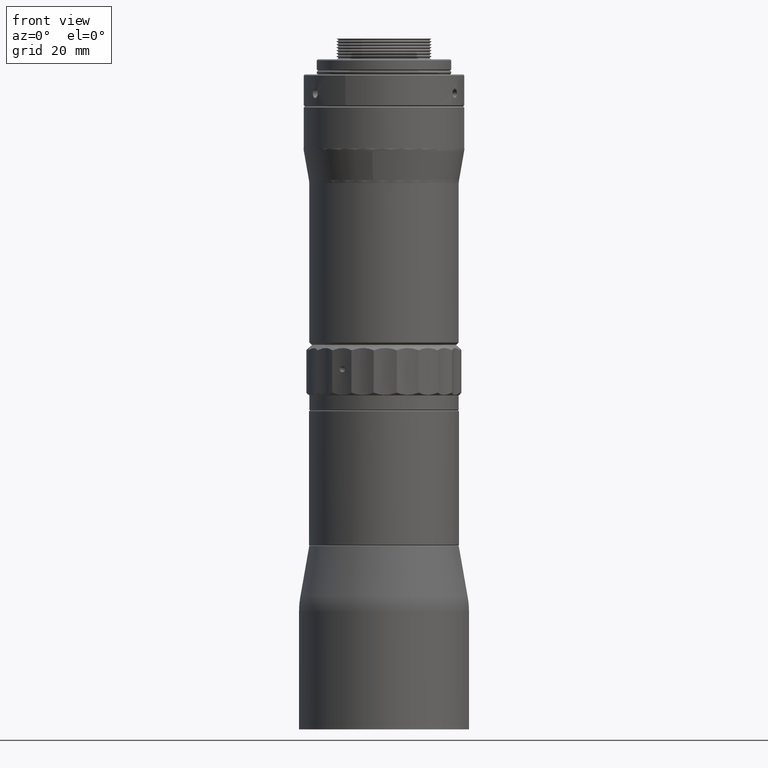
[diagram: clean part render]
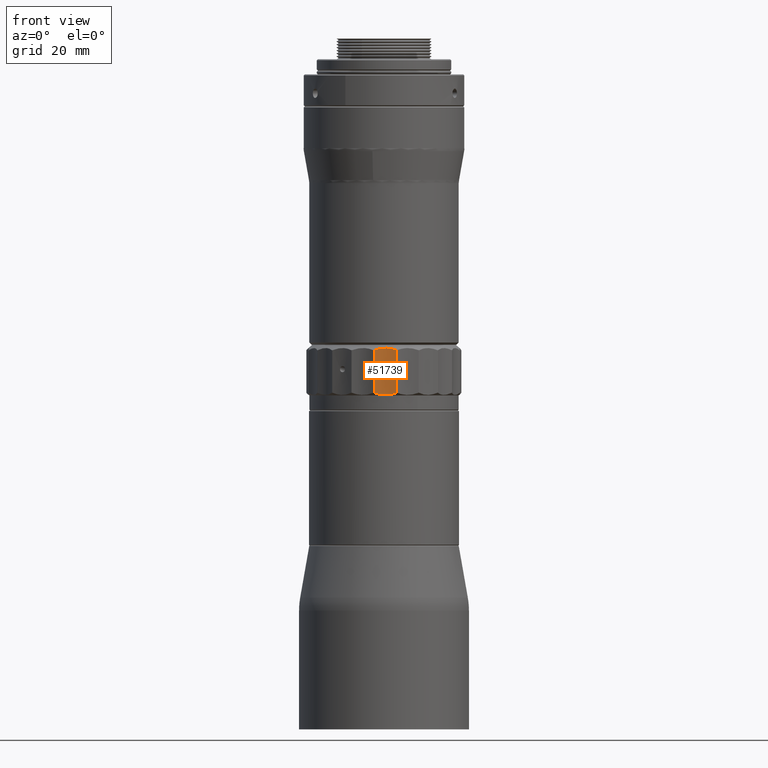
[diagram: same view with one face highlighted and labeled with its STEP entity id]
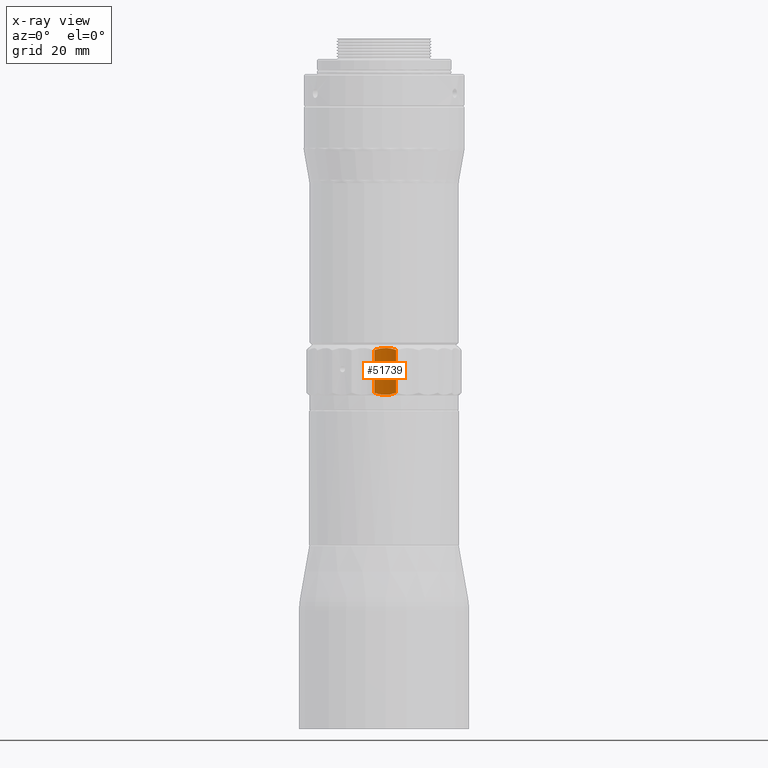
[diagram: x-ray of the same camera — body ghosted, the highlighted face saturated]
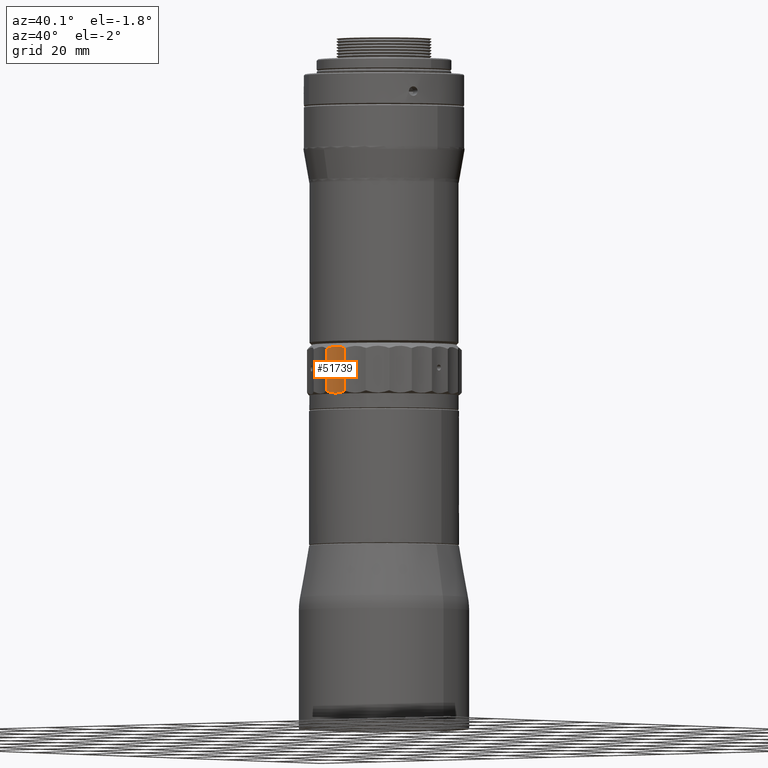
[diagram: same view with one face highlighted and labeled with its STEP entity id]
A machine part, front view. The second image highlights one B-rep face of the part: STEP entity #51739.
The next image is the same camera in x-ray: the body ghosted, the highlighted face saturated — about 0% of this face is hidden behind the body in this view.
A second angle (auxiliary view) of the same face is appended — the face is thin or edge-on in the first view.
In plain terms, the highlighted cylindrical surface (partial cylindrical patch) has radius 12.5 mm, axis along (0, 0, 1).
Its self-contained STEP definition (entity closure, byte-faithful):
#3083 = ORIENTED_EDGE ( 'NONE', *, *, #40556, .F. ) ;
#3836 = CARTESIAN_POINT ( 'NONE',  ( 0.8459623718879358800, -20.12559391238232100, 0.3418387945435792900 ) ) ;
#6682 = CARTESIAN_POINT ( 'NONE',  ( -2.544229410402068400, -20.51647741351325700, -3.800000000000016700 ) ) ;
#7390 = EDGE_CURVE ( 'NONE', #26258, #12067, #57110, .T. ) ;
#8555 = CARTESIAN_POINT ( 'NONE',  ( -0.6512763114536074300, -20.18117513613220400, 12.75984205458377300 ) ) ;
#8956 = CARTESIAN_POINT ( 'NONE',  ( -1.368551018708727100, -20.27210317649874900, 0.5168225069806166000 ) ) ;
#9651 = CARTESIAN_POINT ( 'NONE',  ( 1.343889316833777800, -20.14690924715752700, 0.3901579506920571600 ) ) ;
#12067 = VERTEX_POINT ( 'NONE', #13443 ) ;
#13443 = CARTESIAN_POINT ( 'NONE',  ( 3.247239920367536400, -20.41701206473479100, 12.27637069569749400 ) ) ;
#13649 = CARTESIAN_POINT ( 'NONE',  ( 1.332871917786445000, -20.13909893207689100, 12.77257291761309300 ) ) ;
#14602 = CARTESIAN_POINT ( 'NONE',  ( -2.544229410402072800, -20.51647741351325400, 12.27637069569750000 ) ) ;
#14746 = CARTESIAN_POINT ( 'NONE',  ( -1.610416886464301800, -20.31237892781359400, 0.5748037073963231400 ) ) ;
#16029 = ORIENTED_EDGE ( 'NONE', *, *, #31580, .F. ) ;
#16517 = CARTESIAN_POINT ( 'NONE',  ( 0.5603135079097479900, -32.62481393296793900, -3.800000000000011800 ) ) ;
#16619 = LINE ( 'NONE', #6682, #34946 ) ;
#17035 = CYLINDRICAL_SURFACE ( 'NONE', #23709, 12.50000000000000000 ) ;
#19699 = CARTESIAN_POINT ( 'NONE',  ( 0.8411220823890727100, -20.11810910025023700, 12.82043764096630800 ) ) ;
#19928 = CARTESIAN_POINT ( 'NONE',  ( -2.087913119501665400, -20.39947921915774400, 12.44863673020290500 ) ) ;
#21601 = B_SPLINE_CURVE_WITH_KNOTS ( 'NONE', 3,
 ( #70415, #26190, #36706, #42336, #9651, #3836, #36952, #54493, #31789, #8956, #14746, #48622, #53772, #37427 ),
 .UNSPECIFIED., .F., .F.,
 ( 4, 2, 2, 2, 2, 2, 4 ),
 ( 1.341084023004561700E-018, 0.001485982578273856800, 0.002228973867410783800, 0.002971965156547711400, 0.004457947734821565900, 0.005200939023958494800, 0.005943930313095422000 ),
 .UNSPECIFIED. ) ;
#23709 = AXIS2_PLACEMENT_3D ( 'NONE', #16517, #32584, #49879 ) ;
#25324 = CARTESIAN_POINT ( 'NONE',  ( 2.306969617802980400, -20.24509993647423700, 12.57519629787950600 ) ) ;
#26190 = CARTESIAN_POINT ( 'NONE',  ( 2.787175165840037700, -20.31575221847225500, 0.7013632750729377200 ) ) ;
#26258 = VERTEX_POINT ( 'NONE', #60273 ) ;
#30926 = CARTESIAN_POINT ( 'NONE',  ( 3.017000777578422400, -20.36633663269395500, 12.36258113395838800 ) ) ;
#31580 = EDGE_CURVE ( 'NONE', #71232, #26258, #16619, .T. ) ;
#31789 = CARTESIAN_POINT ( 'NONE',  ( -0.6405336066724723900, -20.17299110305478700, 0.3774270876627390800 ) ) ;
#32584 = DIRECTION ( 'NONE',  ( 6.423668115496230600E-017, 3.480795945985383800E-016, 1.000000000000000000 ) ) ;
#33117 = VERTEX_POINT ( 'NONE', #47778 ) ;
#34946 = VECTOR ( 'NONE', #45621, 1000.000000000000000 ) ;
#36706 = CARTESIAN_POINT ( 'NONE',  ( 2.315828168767330100, -20.23912842626256700, 0.5655838036294514900 ) ) ;
#36952 = CARTESIAN_POINT ( 'NONE',  ( 0.5948571770712847200, -20.12239670500849100, 0.3296565913239516400 ) ) ;
#37427 = CARTESIAN_POINT ( 'NONE',  ( -2.544229410402067500, -20.51647741351325700, 0.8736293095783394000 ) ) ;
#40556 = EDGE_CURVE ( 'NONE', #33117, #71232, #21601, .T. ) ;
#41927 = CARTESIAN_POINT ( 'NONE',  ( -1.619475267520976900, -20.30671513120458700, 12.58441620164638200 ) ) ;
#42184 = DIRECTION ( 'NONE',  ( -6.423668115496230600E-017, -3.480795945985383800E-016, -1.000000000000000000 ) ) ;
#42336 = CARTESIAN_POINT ( 'NONE',  ( 1.589317234651448600, -20.16486166061849200, 0.4259852948239277700 ) ) ;
#45621 = DIRECTION ( 'NONE',  ( 6.423668115496230600E-017, 3.480795945985383800E-016, 1.000000000000000000 ) ) ;
#45839 = EDGE_CURVE ( 'NONE', #12067, #33117, #60063, .T. ) ;
#47055 = CARTESIAN_POINT ( 'NONE',  ( -0.8959430240150190200, -20.20754465940779800, 12.72401471045190400 ) ) ;
#47778 = CARTESIAN_POINT ( 'NONE',  ( 3.247239920367538200, -20.41701206473479900, 0.8736293095783463900 ) ) ;
#48622 = CARTESIAN_POINT ( 'NONE',  ( -2.083578010523144300, -20.40524095188680700, 0.7100366038347054600 ) ) ;
#49879 = DIRECTION ( 'NONE',  ( -0.4492911343849184700, 0.8933854020315718000, -2.775557561562891400E-016 ) ) ;
#51739 = ADVANCED_FACE ( 'NONE', ( #53706 ), #17035, .F. ) ;
#53706 = FACE_OUTER_BOUND ( 'NONE', #69834, .T. ) ;
#53772 = CARTESIAN_POINT ( 'NONE',  ( -2.315866184087282100, -20.45792573418725300, 0.7874188713174441500 ) ) ;
#54493 = CARTESIAN_POINT ( 'NONE',  ( -0.1497945461686785400, -20.13512755661091100, 0.3295623643095250100 ) ) ;
#57110 = B_SPLINE_CURVE_WITH_KNOTS ( 'NONE', 3,
 ( #14602, #19928, #41927, #47055, #8555, #58045, #58758, #19699, #13649, #69519, #25324, #64384, #30926, #69999 ),
 .UNSPECIFIED., .F., .F.,
 ( 4, 2, 2, 2, 2, 2, 4 ),
 ( 6.732537572691845700E-018, 0.001485982578273861100, 0.002228973867410789000, 0.002971965156547717100, 0.004457947734821572800, 0.005200939023958501800, 0.005943930313095431600 ),
 .UNSPECIFIED. ) ;
#58045 = CARTESIAN_POINT ( 'NONE',  ( -0.1543749617289848800, -20.14277416424961200, 12.80816121073225500 ) ) ;
#58289 = CARTESIAN_POINT ( 'NONE',  ( 3.247239920367539900, -20.41701206473479900, -3.800000000000016700 ) ) ;
#58758 = CARTESIAN_POINT ( 'NONE',  ( 0.09647235555130430400, -20.13095619436553500, 12.82034341395188500 ) ) ;
#60063 = LINE ( 'NONE', #58289, #69689 ) ;
#60273 = CARTESIAN_POINT ( 'NONE',  ( -2.544229410402072800, -20.51647741351325400, 12.27637069569750000 ) ) ;
#61909 = ORIENTED_EDGE ( 'NONE', *, *, #45839, .F. ) ;
#64384 = CARTESIAN_POINT ( 'NONE',  ( 2.783040464411410400, -20.32165941560735000, 12.43996340144112300 ) ) ;
#69229 = ORIENTED_EDGE ( 'NONE', *, *, #7390, .F. ) ;
#69519 = CARTESIAN_POINT ( 'NONE',  ( 2.063863369975442700, -20.21315331855703300, 12.63317749829521800 ) ) ;
#69689 = VECTOR ( 'NONE', #42184, 1000.000000000000000 ) ;
#69834 = EDGE_LOOP ( 'NONE', ( #69229, #16029, #3083, #61909 ) ) ;
#69999 = CARTESIAN_POINT ( 'NONE',  ( 3.247239920367536400, -20.41701206473479100, 12.27637069569749400 ) ) ;
#70219 = CARTESIAN_POINT ( 'NONE',  ( -2.544229410402067500, -20.51647741351325700, 0.8736293095783394000 ) ) ;
#70415 = CARTESIAN_POINT ( 'NONE',  ( 3.247239920367538200, -20.41701206473479900, 0.8736293095783463900 ) ) ;
#71232 = VERTEX_POINT ( 'NONE', #70219 ) ;